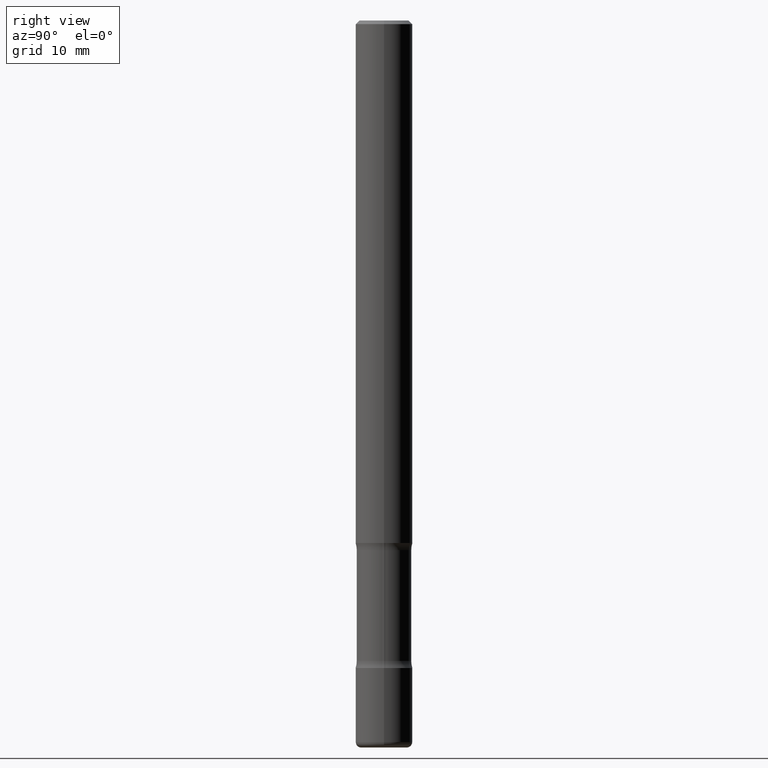
[diagram: clean part render]
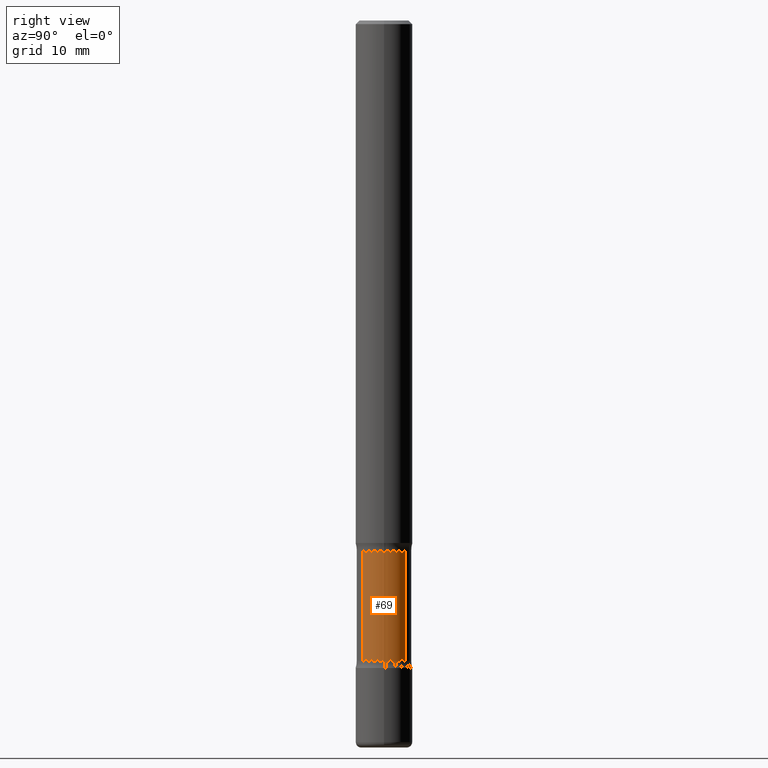
[diagram: same view with one face highlighted and labeled with its STEP entity id]
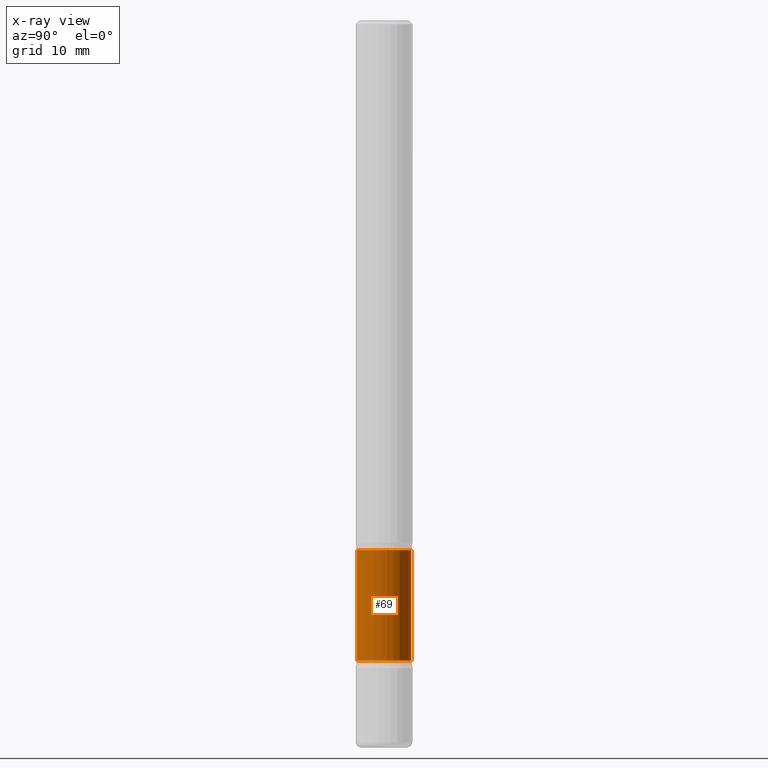
[diagram: x-ray of the same camera — body ghosted, the highlighted face saturated]
A machine part, right view. The second image highlights one B-rep face of the part: STEP entity #69.
The next image is the same camera in x-ray: the body ghosted, the highlighted face saturated — about 0% of this face is hidden behind the body in this view.
In plain terms, the highlighted cylindrical surface (edge-blend (fillet) strip) has radius 3.81 mm, axis along (0, -0, -1).
Its self-contained STEP definition (entity closure, byte-faithful):
#22 = CARTESIAN_POINT ( 'NONE',  ( -1.029074699665631363E-15, -0.1500000000000139000, -3.996136889874975395 ) ) ;
#56 = DIRECTION ( 'NONE',  ( 2.447740878910250667E-29, -3.488227601382433694E-15, -1.000000000000000000 ) ) ;
#57 = EDGE_CURVE ( 'NONE', #599, #586, #591, .T. ) ;
#59 = CIRCLE ( 'NONE', #570, 0.1499999999999999667 ) ;
#69 = ADVANCED_FACE ( 'NONE', ( #339 ), #681, .T. ) ;
#88 = CARTESIAN_POINT ( 'NONE',  ( 7.124699123342455301E-29, -1.017639563360698075E-14, -2.914031237489990378 ) ) ;
#127 = CARTESIAN_POINT ( 'NONE',  ( 8.616444266475845337E-29, -1.230225242970000905E-14, -3.523468762510010066 ) ) ;
#147 = AXIS2_PLACEMENT_3D ( 'NONE', #726, #672, #602 ) ;
#152 = VERTEX_POINT ( 'NONE', #349 ) ;
#178 = VECTOR ( 'NONE', #276, 39.37007874015748143 ) ;
#208 = EDGE_CURVE ( 'NONE', #152, #586, #59, .T. ) ;
#252 = DIRECTION ( 'NONE',  ( 6.982962677686266711E-15, 1.000000000000000000, -3.642463991552351747E-15 ) ) ;
#268 = VECTOR ( 'NONE', #724, 39.37007874015748143 ) ;
#276 = DIRECTION ( 'NONE',  ( 2.447740878910250667E-29, -3.488227601382434089E-15, -1.000000000000000000 ) ) ;
#285 = LINE ( 'NONE', #788, #268 ) ;
#311 = VERTEX_POINT ( 'NONE', #464 ) ;
#313 = ORIENTED_EDGE ( 'NONE', *, *, #208, .F. ) ;
#332 = DIRECTION ( 'NONE',  ( 2.447740878910250667E-29, -3.488227601382433694E-15, -1.000000000000000000 ) ) ;
#337 = DIRECTION ( 'NONE',  ( 6.982962677686265922E-15, 1.000000000000000000, -3.642463991552353325E-15 ) ) ;
#339 = FACE_OUTER_BOUND ( 'NONE', #410, .T. ) ;
#349 = CARTESIAN_POINT ( 'NONE',  ( 1.047444401653025795E-15, 0.1499999999999876710, -3.523468762510010510 ) ) ;
#367 = EDGE_CURVE ( 'NONE', #311, #599, #751, .T. ) ;
#410 = EDGE_LOOP ( 'NONE', ( #569, #697, #313, #789 ) ) ;
#464 = CARTESIAN_POINT ( 'NONE',  ( 1.047444401653010412E-15, 0.1499999999999897249, -2.914031237489990822 ) ) ;
#488 = AXIS2_PLACEMENT_3D ( 'NONE', #88, #332, #337 ) ;
#569 = ORIENTED_EDGE ( 'NONE', *, *, #367, .T. ) ;
#570 = AXIS2_PLACEMENT_3D ( 'NONE', #127, #56, #252 ) ;
#586 = VERTEX_POINT ( 'NONE', #673 ) ;
#591 = LINE ( 'NONE', #22, #178 ) ;
#599 = VERTEX_POINT ( 'NONE', #790 ) ;
#602 = DIRECTION ( 'NONE',  ( 6.982962677686265922E-15, 1.000000000000000000, -3.642463991552352536E-15 ) ) ;
#655 = EDGE_CURVE ( 'NONE', #311, #152, #285, .T. ) ;
#672 = DIRECTION ( 'NONE',  ( 2.447740878910250667E-29, -3.488227601382433694E-15, -1.000000000000000000 ) ) ;
#673 = CARTESIAN_POINT ( 'NONE',  ( -1.050513755908679114E-15, -0.1500000000000122902, -3.523468762510009622 ) ) ;
#681 = CYLINDRICAL_SURFACE ( 'NONE', #147, 0.1499999999999999389 ) ;
#697 = ORIENTED_EDGE ( 'NONE', *, *, #57, .T. ) ;
#724 = DIRECTION ( 'NONE',  ( 2.447740878910250667E-29, -3.488227601382434089E-15, -1.000000000000000000 ) ) ;
#726 = CARTESIAN_POINT ( 'NONE',  ( 9.773413363985029631E-29, -1.395102643786823245E-14, -3.996136889874975839 ) ) ;
#751 = CIRCLE ( 'NONE', #488, 0.1499999999999999112 ) ;
#788 = CARTESIAN_POINT ( 'NONE',  ( 1.047444401653037234E-15, 0.1499999999999859779, -3.996136889874976283 ) ) ;
#789 = ORIENTED_EDGE ( 'NONE', *, *, #655, .F. ) ;
#790 = CARTESIAN_POINT ( 'NONE',  ( -1.050513755908694694E-15, -0.1500000000000100975, -2.914031237489989934 ) ) ;